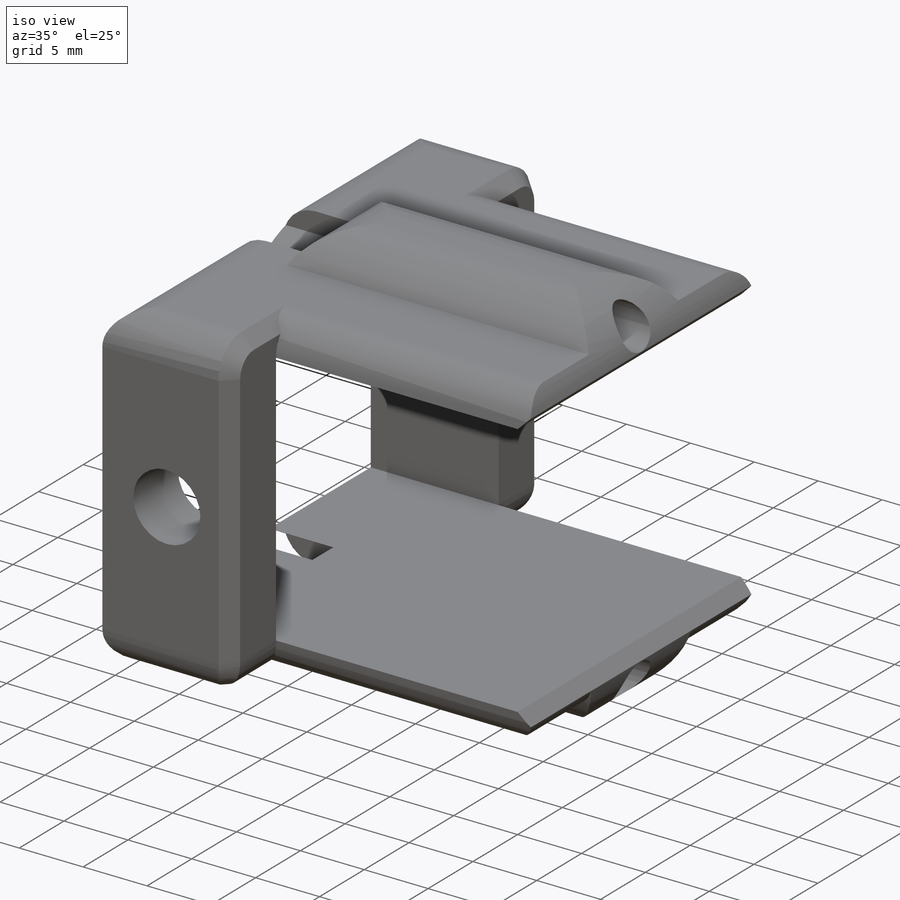
[diagram: iso view]
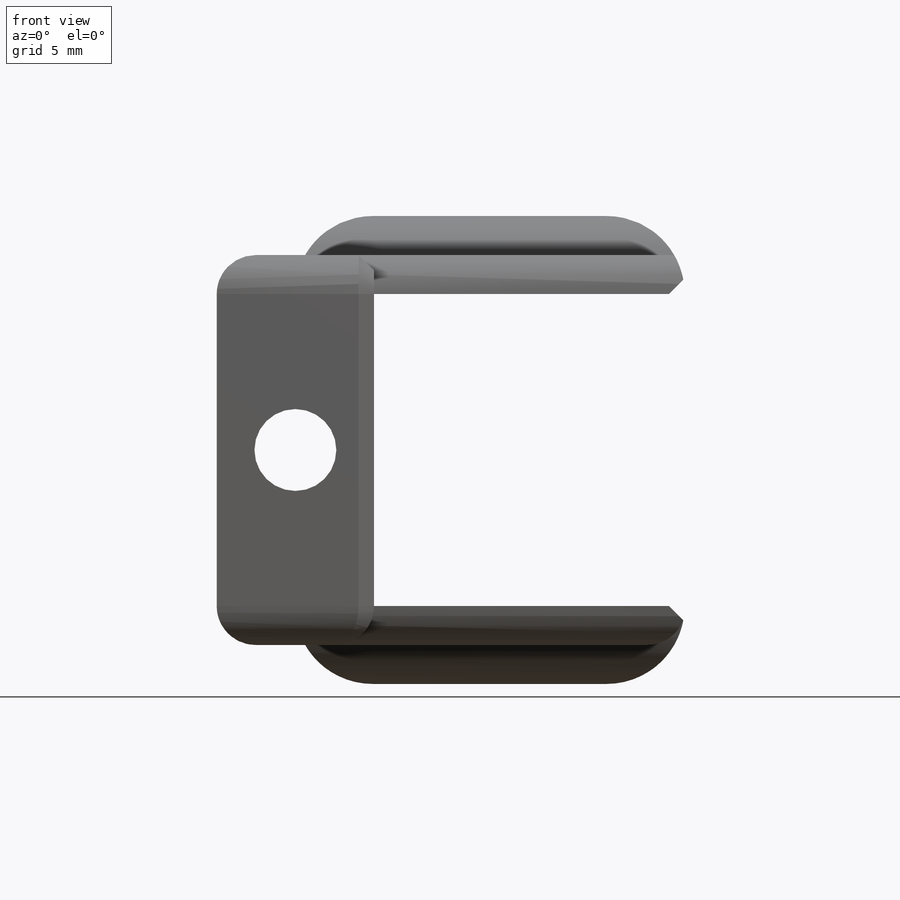
[diagram: front view]
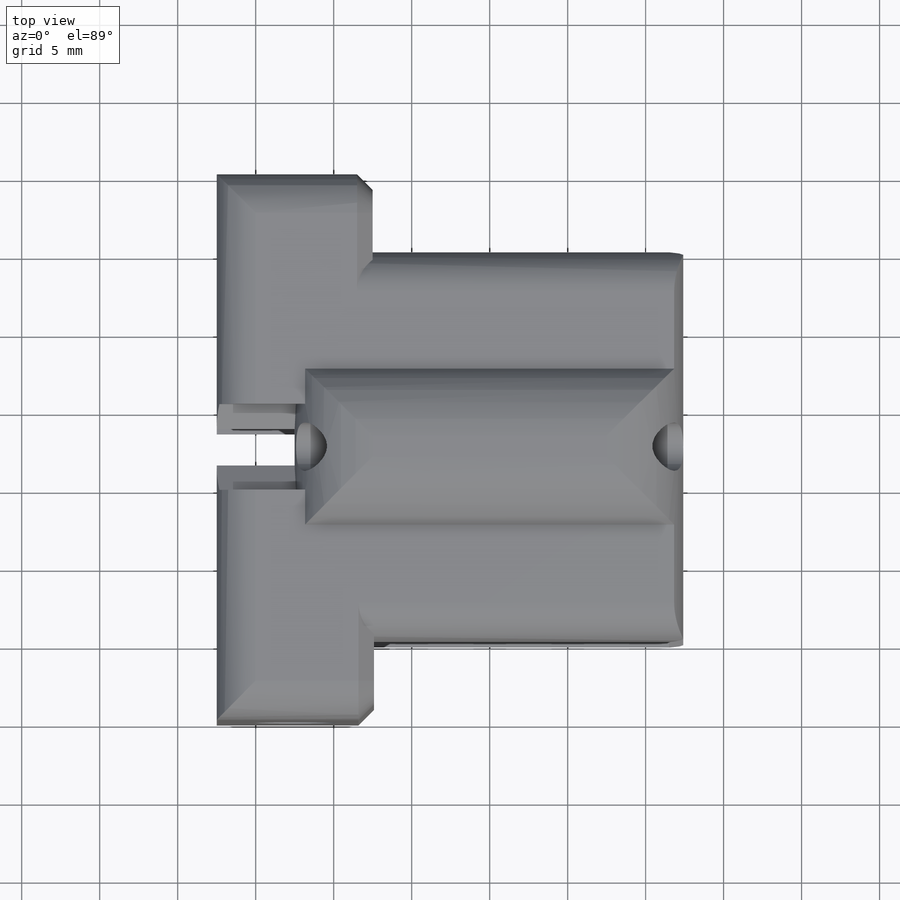
[diagram: top view]
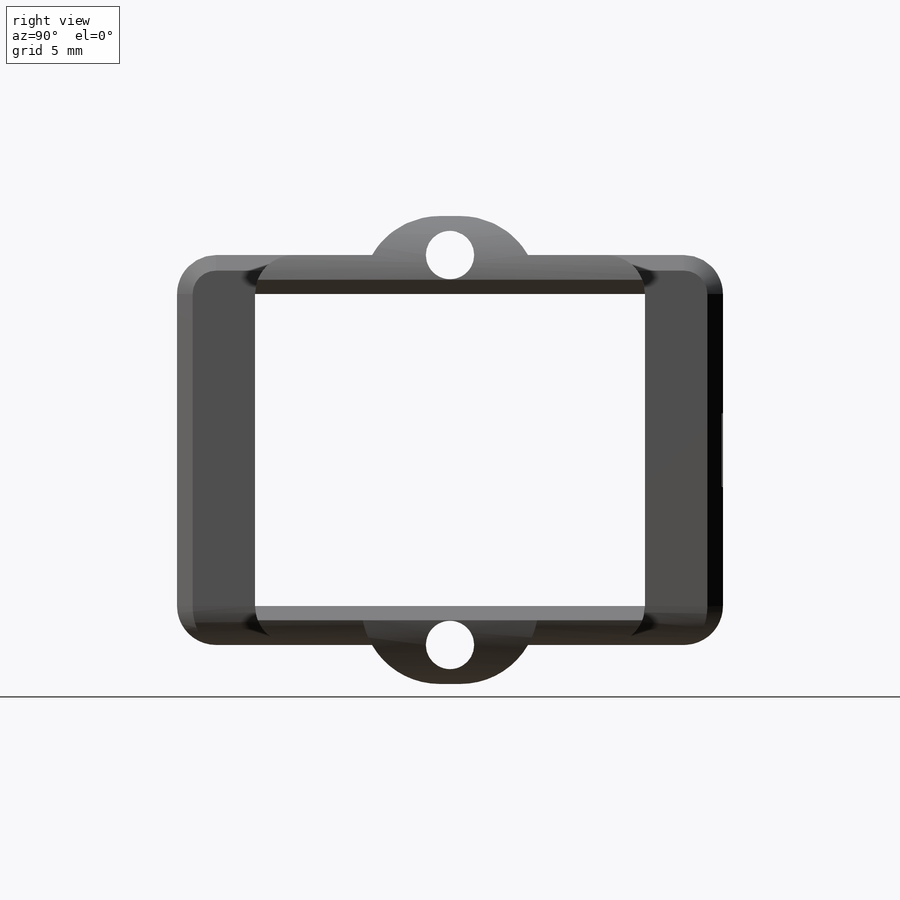
[diagram: right view]
SOLIDWORKS PART (.sldprt)
format: sldprt  version: not decoded by parser v0  size: 485,888 bytes
history: native  units: mm
features: sketch x13, cut_extrude x6, extrude x5, fillet x4, chamfer x2, material x1 (+13 scaffold rows collapsed)
feature tree (44):
  scaffold x13  (default folders/planes/origin — collapsed)
  material  "Material <not specified>"
  sketch  "Sketch1"  dims[D1=35.0mm D2=25.0mm]
  extrude  "Boss-Extrude1"  Depth=25mm
  sketch  "Sketch2"  dims[D1=2.5mm D2=2.5mm D3=5.0mm D4=20.0mm]
  cut_extrude  "Cut-Extrude1"  [1 undecoded]
  sketch  "Sketch3"
  extrude  "Boss-Extrude2"  Depth=5mm
  sketch  "Sketch4"  dims[D1=20.0mm]
  extrude  "Boss-Extrude4"  Depth=5mm
  sketch  "Sketch5"
  cut_extrude  "Cut-Extrude3"  [1 undecoded]
  sketch  "Sketch7"  dims[D1=2.5mm]
  sketch  "Sketch8"  dims[D1=10.0mm]
  extrude  "Boss-Extrude6"  Depth=2.5mm
  sketch  "Sketch9"  dims[D1=10.0mm]
  extrude  "Boss-Extrude8"  Depth=2.5mm
  sketch  "Sketch11"  dims[D1=3.1mm]
  cut_extrude  "Cut-Extrude5"  [1 undecoded]
  sketch  "Sketch12"  dims[D1=5.5mm D2=5.5mm]
  cut_extrude  "Cut-Extrude6"  Depth=5mm
  sketch  "Sketch13"  dims[D1=5.25mm]
  cut_extrude  "Cut-Extrude7"  [1 undecoded]
  sketch  "Sketch14"  dims[D1=8.1mm]
  cut_extrude  "Cut-Extrude8"  Depth=3mm
  fillet  "Fillet1"  Radius=5mm
  fillet  "Fillet2"  Radius=5mm
  chamfer  "Chamfer1"  Distance=1mm Angle=45deg
  fillet  "Fillet3"  Radius=2.5mm
  fillet  "Fillet4"  Radius=2.5mm
  chamfer  "Chamfer2"  Distance=1mm Angle=45deg
  sketch  "Sketch16"  dims[D1=25.0mm]
decode coverage: 24 of 30 modeling features carry decoded parameters
note: 4 parameter values undecoded
summary: no parameter record found for 4 features
note: suppression state not decoded; provenance and decode notes live in map.json
